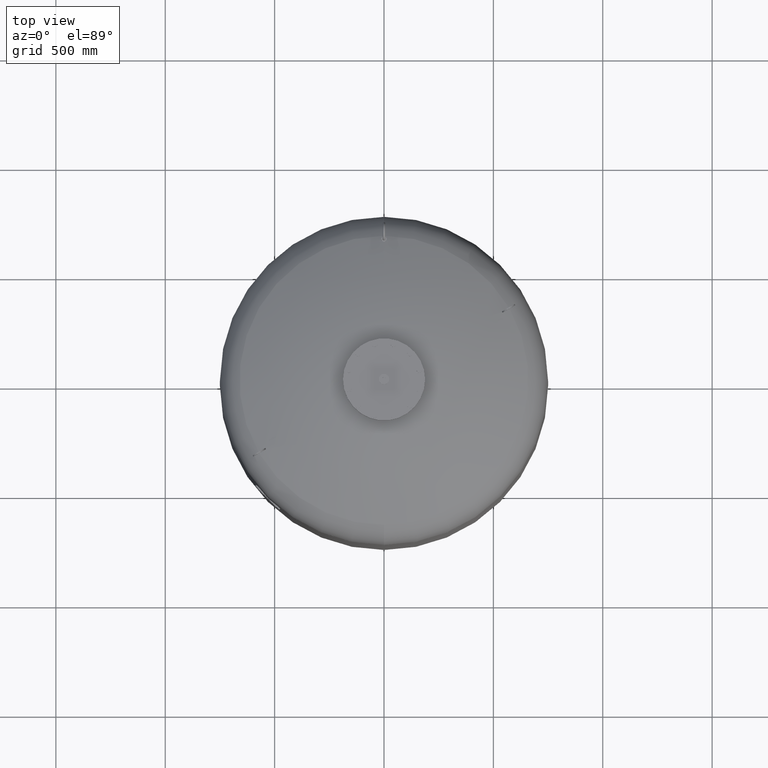
[diagram: clean part render]
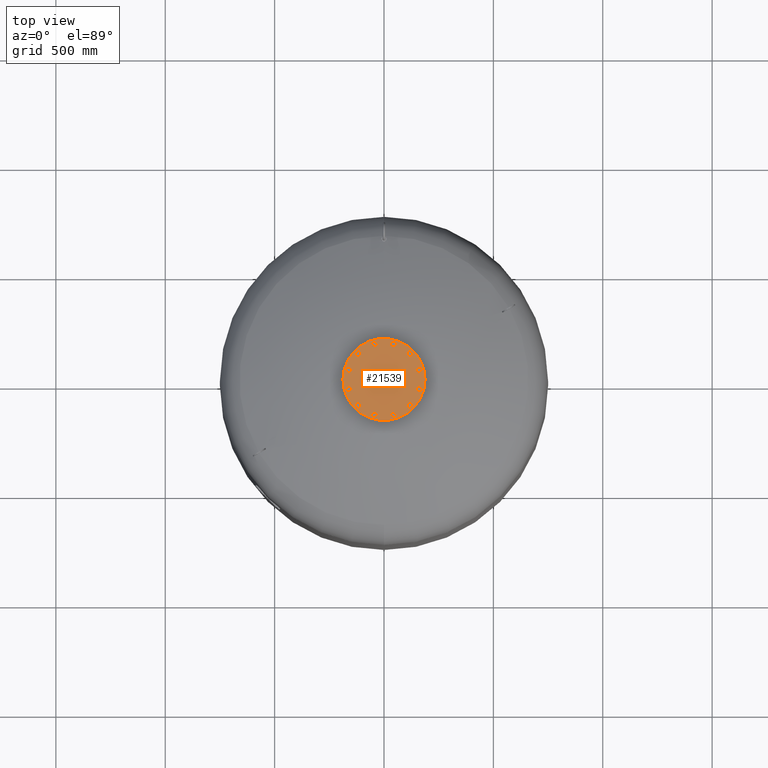
[diagram: same view with one face highlighted and labeled with its STEP entity id]
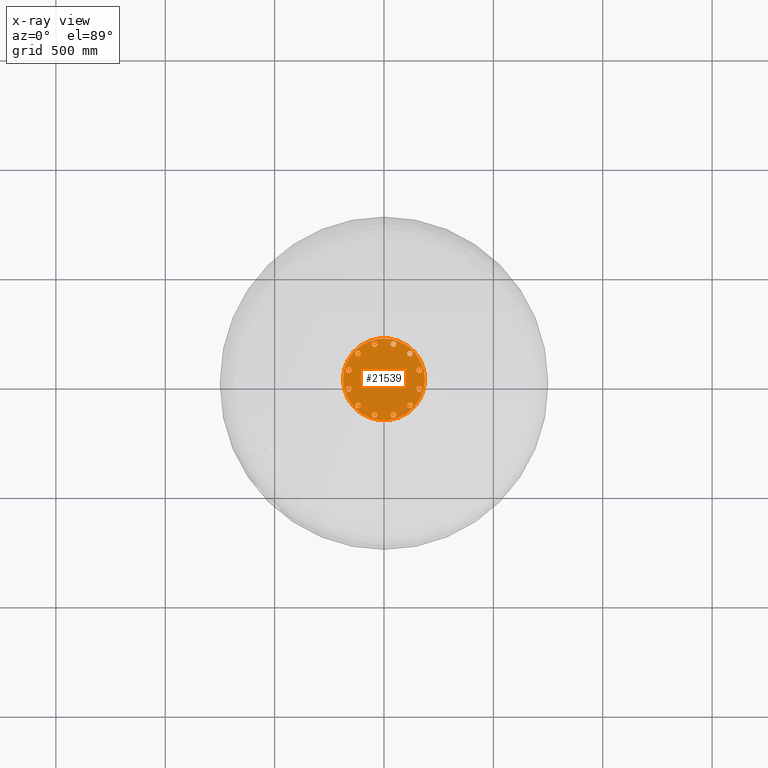
[diagram: x-ray of the same camera — body ghosted, the highlighted face saturated]
A machine part, top view. The second image highlights one B-rep face of the part: STEP entity #21539.
The next image is the same camera in x-ray: the body ghosted, the highlighted face saturated — about 0% of this face is hidden behind the body in this view.
In plain terms, the highlighted planar face has unit normal (0, 0, 1).
Its self-contained STEP definition (entity closure, byte-faithful):
#13777=CARTESIAN_POINT('',(-187.500000000000000,0.0,2481.0));
#13778=VERTEX_POINT('',#13777);
#13794=CARTESIAN_POINT('',(187.500000000000000,-2.296137E-014,2481.0));
#13795=VERTEX_POINT('',#13794);
#13802=CARTESIAN_POINT('',(0.0,0.0,2481.0));
#13803=DIRECTION('',(0.0,0.0,-1.0));
#13804=DIRECTION('',(-1.0,0.0,0.0));
#13805=AXIS2_PLACEMENT_3D('',#13802,#13803,#13804);
#13806=CIRCLE('',#13805,187.500000000000000);
#13807=EDGE_CURVE('',#13795,#13778,#13806,.T.);
#19033=CARTESIAN_POINT('',(157.729139400922860,30.104983413641008,2481.0));
#19034=VERTEX_POINT('',#19033);
#19035=CARTESIAN_POINT('',(148.288440171855850,40.247625971983268,2481.0));
#19036=VERTEX_POINT('',#19035);
#19037=CARTESIAN_POINT('',(157.729139400922860,30.104983413641008,2481.0));
#19038=DIRECTION('',(-0.681323780155013,0.731982176419128,0.0));
#19039=VECTOR('',#19038,13.856406460551090);
#19040=LINE('',#19037,#19039);
#19041=EDGE_CURVE('',#19034,#19036,#19040,.T.);
#19073=CARTESIAN_POINT('',(171.233275132485970,33.209547496330110,2481.0));
#19074=VERTEX_POINT('',#19073);
#19075=CARTESIAN_POINT('',(171.233275132485970,33.209547496330110,2481.0));
#19076=DIRECTION('',(-0.974577049973894,-0.224052613607123,0.0));
#19077=VECTOR('',#19076,13.856406460551119);
#19078=LINE('',#19075,#19077);
#19079=EDGE_CURVE('',#19074,#19034,#19078,.T.);
#19104=CARTESIAN_POINT('',(175.296711634982050,46.456754137361422,2481.0));
#19105=VERTEX_POINT('',#19104);
#19106=CARTESIAN_POINT('',(175.296711634982050,46.456754137361422,2481.0));
#19107=DIRECTION('',(-0.293253269818881,-0.956034790026249,0.0));
#19108=VECTOR('',#19107,13.856406460551076);
#19109=LINE('',#19106,#19108);
#19110=EDGE_CURVE('',#19105,#19074,#19109,.T.);
#19135=CARTESIAN_POINT('',(152.351876674351930,53.494832613014587,2481.0));
#19136=VERTEX_POINT('',#19135);
#19137=CARTESIAN_POINT('',(148.288440171855850,40.247625971983268,2481.0));
#19138=DIRECTION('',(0.293253269818881,0.956034790026249,0.0));
#19139=VECTOR('',#19138,13.856406460551083);
#19140=LINE('',#19137,#19139);
#19141=EDGE_CURVE('',#19036,#19136,#19140,.T.);
#19166=CARTESIAN_POINT('',(165.856012405915040,56.599396695703689,2481.0));
#19167=VERTEX_POINT('',#19166);
#19168=CARTESIAN_POINT('',(152.351876674351930,53.494832613014587,2481.0));
#19169=DIRECTION('',(0.974577049973894,0.224052613607123,0.0));
#19170=VECTOR('',#19169,13.856406460551119);
#19171=LINE('',#19168,#19170);
#19172=EDGE_CURVE('',#19136,#19167,#19171,.T.);
#19197=CARTESIAN_POINT('',(165.856012405915040,56.599396695703689,2481.0));
#19198=DIRECTION('',(0.681323780155012,-0.731982176419129,0.0));
#19199=VECTOR('',#19198,13.856406460551096);
#19200=LINE('',#19197,#19199);
#19201=EDGE_CURVE('',#19167,#19105,#19200,.T.);
#19233=CARTESIAN_POINT('',(121.544949931435720,104.936250117183760,2481.0));
#19234=VERTEX_POINT('',#19233);
#19235=CARTESIAN_POINT('',(108.297743290404380,108.999686619679820,2481.0));
#19236=VERTEX_POINT('',#19235);
#19237=CARTESIAN_POINT('',(121.544949931435720,104.936250117183760,2481.0));
#19238=DIRECTION('',(-0.956034790026250,0.293253269818880,0.0));
#19239=VECTOR('',#19238,13.856406460551101);
#19240=LINE('',#19237,#19239);
#19241=EDGE_CURVE('',#19234,#19236,#19240,.T.);
#19273=CARTESIAN_POINT('',(131.687592489777960,114.376949346250780,2481.0));
#19274=VERTEX_POINT('',#19273);
#19275=CARTESIAN_POINT('',(131.687592489777960,114.376949346250780,2481.0));
#19276=DIRECTION('',(-0.731982176419127,-0.681323780155014,0.0));
#19277=VECTOR('',#19276,13.856406460551080);
#19278=LINE('',#19275,#19277);
#19279=EDGE_CURVE('',#19274,#19234,#19278,.T.);
#19304=CARTESIAN_POINT('',(128.583028407088880,127.881085077813880,2481.0));
#19305=VERTEX_POINT('',#19304);
#19306=CARTESIAN_POINT('',(128.583028407088880,127.881085077813880,2481.0));
#19307=DIRECTION('',(0.224052613607122,-0.974577049973894,0.0));
#19308=VECTOR('',#19307,13.856406460551099);
#19309=LINE('',#19306,#19308);
#19310=EDGE_CURVE('',#19305,#19274,#19309,.T.);
#19335=CARTESIAN_POINT('',(105.193179207715300,122.503822351242900,2481.0));
#19336=VERTEX_POINT('',#19335);
#19337=CARTESIAN_POINT('',(108.297743290404380,108.999686619679820,2481.0));
#19338=DIRECTION('',(-0.224052613607122,0.974577049973894,0.0));
#19339=VECTOR('',#19338,13.856406460551087);
#19340=LINE('',#19337,#19339);
#19341=EDGE_CURVE('',#19236,#19336,#19340,.T.);
#19366=CARTESIAN_POINT('',(115.335821766057560,131.944521580309950,2481.0));
#19367=VERTEX_POINT('',#19366);
#19368=CARTESIAN_POINT('',(105.193179207715300,122.503822351242900,2481.0));
#19369=DIRECTION('',(0.731982176419127,0.681323780155014,0.0));
#19370=VECTOR('',#19369,13.856406460551121);
#19371=LINE('',#19368,#19370);
#19372=EDGE_CURVE('',#19336,#19367,#19371,.T.);
#19397=CARTESIAN_POINT('',(115.335821766057560,131.944521580309950,2481.0));
#19398=DIRECTION('',(0.956034790026249,-0.293253269818881,0.0));
#19399=VECTOR('',#19398,13.856406460551076);
#19400=LINE('',#19397,#19399);
#19401=EDGE_CURVE('',#19367,#19305,#19400,.T.);
#19433=CARTESIAN_POINT('',(52.792889283739193,151.649933345076730,2481.0));
#19434=VERTEX_POINT('',#19433);
#19435=CARTESIAN_POINT('',(39.288753552176118,148.545369262387680,2481.0));
#19436=VERTEX_POINT('',#19435);
#19437=CARTESIAN_POINT('',(52.792889283739193,151.649933345076730,2481.0));
#19438=DIRECTION('',(-0.974577049973894,-0.224052613607120,0.0));
#19439=VECTOR('',#19438,13.856406460551073);
#19440=LINE('',#19437,#19439);
#19441=EDGE_CURVE('',#19434,#19436,#19440,.T.);
#19473=CARTESIAN_POINT('',(56.856325786235274,164.897139986108100,2481.0));
#19474=VERTEX_POINT('',#19473);
#19475=CARTESIAN_POINT('',(56.856325786235274,164.897139986108100,2481.0));
#19476=DIRECTION('',(-0.293253269818881,-0.956034790026249,0.0));
#19477=VECTOR('',#19476,13.856406460551133);
#19478=LINE('',#19475,#19477);
#19479=EDGE_CURVE('',#19474,#19434,#19478,.T.);
#19504=CARTESIAN_POINT('',(47.415626557168267,175.039782544450330,2481.0));
#19505=VERTEX_POINT('',#19504);
#19506=CARTESIAN_POINT('',(47.415626557168267,175.039782544450330,2481.0));
#19507=DIRECTION('',(0.681323780155014,-0.731982176419128,0.0));
#19508=VECTOR('',#19507,13.856406460551069);
#19509=LINE('',#19506,#19508);
#19510=EDGE_CURVE('',#19505,#19474,#19509,.T.);
#19535=CARTESIAN_POINT('',(29.848054323109103,158.688011820729910,2481.0));
#19536=VERTEX_POINT('',#19535);
#19537=CARTESIAN_POINT('',(39.288753552176118,148.545369262387680,2481.0));
#19538=DIRECTION('',(-0.681323780155014,0.731982176419127,0.0));
#19539=VECTOR('',#19538,13.856406460551076);
#19540=LINE('',#19537,#19539);
#19541=EDGE_CURVE('',#19436,#19536,#19540,.T.);
#19566=CARTESIAN_POINT('',(33.911490825605156,171.935218461761250,2481.0));
#19567=VERTEX_POINT('',#19566);
#19568=CARTESIAN_POINT('',(29.848054323109103,158.688011820729910,2481.0));
#19569=DIRECTION('',(0.293253269818879,0.956034790026250,0.0));
#19570=VECTOR('',#19569,13.856406460551097);
#19571=LINE('',#19568,#19570);
#19572=EDGE_CURVE('',#19536,#19567,#19571,.T.);
#19597=CARTESIAN_POINT('',(33.911490825605156,171.935218461761250,2481.0));
#19598=DIRECTION('',(0.974577049973894,0.224052613607121,0.0));
#19599=VECTOR('',#19598,13.856406460551113);
#19600=LINE('',#19597,#19599);
#19601=EDGE_CURVE('',#19567,#19505,#19600,.T.);
#19633=CARTESIAN_POINT('',(-30.104983413641008,157.729139400922860,2481.0));
#19634=VERTEX_POINT('',#19633);
#19635=CARTESIAN_POINT('',(-40.247625971983268,148.288440171855850,2481.0));
#19636=VERTEX_POINT('',#19635);
#19637=CARTESIAN_POINT('',(-30.104983413641008,157.729139400922860,2481.0));
#19638=DIRECTION('',(-0.731982176419128,-0.681323780155013,0.0));
#19639=VECTOR('',#19638,13.856406460551090);
#19640=LINE('',#19637,#19639);
#19641=EDGE_CURVE('',#19634,#19636,#19640,.T.);
#19673=CARTESIAN_POINT('',(-33.209547496330110,171.233275132485970,2481.0));
#19674=VERTEX_POINT('',#19673);
#19675=CARTESIAN_POINT('',(-33.209547496330110,171.233275132485970,2481.0));
#19676=DIRECTION('',(0.224052613607123,-0.974577049973894,0.0));
#19677=VECTOR('',#19676,13.856406460551119);
#19678=LINE('',#19675,#19677);
#19679=EDGE_CURVE('',#19674,#19634,#19678,.T.);
#19704=CARTESIAN_POINT('',(-46.456754137361422,175.296711634982050,2481.0));
#19705=VERTEX_POINT('',#19704);
#19706=CARTESIAN_POINT('',(-46.456754137361422,175.296711634982050,2481.0));
#19707=DIRECTION('',(0.956034790026249,-0.293253269818881,0.0));
#19708=VECTOR('',#19707,13.856406460551076);
#19709=LINE('',#19706,#19708);
#19710=EDGE_CURVE('',#19705,#19674,#19709,.T.);
#19735=CARTESIAN_POINT('',(-53.494832613014587,152.351876674351930,2481.0));
#19736=VERTEX_POINT('',#19735);
#19737=CARTESIAN_POINT('',(-40.247625971983268,148.288440171855850,2481.0));
#19738=DIRECTION('',(-0.956034790026249,0.293253269818881,0.0));
#19739=VECTOR('',#19738,13.856406460551083);
#19740=LINE('',#19737,#19739);
#19741=EDGE_CURVE('',#19636,#19736,#19740,.T.);
#19766=CARTESIAN_POINT('',(-56.599396695703689,165.856012405915040,2481.0));
#19767=VERTEX_POINT('',#19766);
#19768=CARTESIAN_POINT('',(-53.494832613014587,152.351876674351930,2481.0));
#19769=DIRECTION('',(-0.224052613607123,0.974577049973894,0.0));
#19770=VECTOR('',#19769,13.856406460551119);
#19771=LINE('',#19768,#19770);
#19772=EDGE_CURVE('',#19736,#19767,#19771,.T.);
#19797=CARTESIAN_POINT('',(-56.599396695703689,165.856012405915040,2481.0));
#19798=DIRECTION('',(0.731982176419129,0.681323780155012,0.0));
#19799=VECTOR('',#19798,13.856406460551096);
#19800=LINE('',#19797,#19799);
#19801=EDGE_CURVE('',#19767,#19705,#19800,.T.);
#19833=CARTESIAN_POINT('',(-104.936250117183700,121.544949931435750,2481.0));
#19834=VERTEX_POINT('',#19833);
#19835=CARTESIAN_POINT('',(-108.999686619679760,108.297743290404440,2481.0));
#19836=VERTEX_POINT('',#19835);
#19837=CARTESIAN_POINT('',(-104.936250117183700,121.544949931435750,2481.0));
#19838=DIRECTION('',(-0.293253269818880,-0.956034790026249,0.0));
#19839=VECTOR('',#19838,13.856406460551073);
#19840=LINE('',#19837,#19839);
#19841=EDGE_CURVE('',#19834,#19836,#19840,.T.);
#19873=CARTESIAN_POINT('',(-114.376949346250730,131.687592489778010,2481.0));
#19874=VERTEX_POINT('',#19873);
#19875=CARTESIAN_POINT('',(-114.376949346250730,131.687592489778010,2481.0));
#19876=DIRECTION('',(0.681323780155013,-0.731982176419128,0.0));
#19877=VECTOR('',#19876,13.856406460551101);
#19878=LINE('',#19875,#19877);
#19879=EDGE_CURVE('',#19874,#19834,#19878,.T.);
#19904=CARTESIAN_POINT('',(-127.881085077813810,128.583028407088930,2481.0));
#19905=VERTEX_POINT('',#19904);
#19906=CARTESIAN_POINT('',(-127.881085077813810,128.583028407088930,2481.0));
#19907=DIRECTION('',(0.974577049973894,0.224052613607122,0.0));
#19908=VECTOR('',#19907,13.856406460551087);
#19909=LINE('',#19906,#19908);
#19910=EDGE_CURVE('',#19905,#19874,#19909,.T.);
#19935=CARTESIAN_POINT('',(-122.503822351242850,105.193179207715360,2481.0));
#19936=VERTEX_POINT('',#19935);
#19937=CARTESIAN_POINT('',(-108.999686619679760,108.297743290404440,2481.0));
#19938=DIRECTION('',(-0.974577049973894,-0.224052613607122,0.0));
#19939=VECTOR('',#19938,13.856406460551087);
#19940=LINE('',#19937,#19939);
#19941=EDGE_CURVE('',#19836,#19936,#19940,.T.);
#19966=CARTESIAN_POINT('',(-131.944521580309900,115.335821766057620,2481.0));
#19967=VERTEX_POINT('',#19966);
#19968=CARTESIAN_POINT('',(-122.503822351242850,105.193179207715360,2481.0));
#19969=DIRECTION('',(-0.681323780155014,0.731982176419127,0.0));
#19970=VECTOR('',#19969,13.856406460551121);
#19971=LINE('',#19968,#19970);
#19972=EDGE_CURVE('',#19936,#19967,#19971,.T.);
#19997=CARTESIAN_POINT('',(-131.944521580309900,115.335821766057620,2481.0));
#19998=DIRECTION('',(0.293253269818882,0.956034790026249,0.0));
#19999=VECTOR('',#19998,13.856406460551081);
#20000=LINE('',#19997,#19999);
#20001=EDGE_CURVE('',#19967,#19905,#20000,.T.);
#20033=CARTESIAN_POINT('',(-151.649933345076730,52.792889283739214,2481.0));
#20034=VERTEX_POINT('',#20033);
#20035=CARTESIAN_POINT('',(-148.545369262387650,39.288753552176125,2481.0));
#20036=VERTEX_POINT('',#20035);
#20037=CARTESIAN_POINT('',(-151.649933345076730,52.792889283739214,2481.0));
#20038=DIRECTION('',(0.224052613607122,-0.974577049973894,0.0));
#20039=VECTOR('',#20038,13.856406460551092);
#20040=LINE('',#20037,#20039);
#20041=EDGE_CURVE('',#20034,#20036,#20040,.T.);
#20073=CARTESIAN_POINT('',(-164.897139986108100,56.856325786235296,2481.0));
#20074=VERTEX_POINT('',#20073);
#20075=CARTESIAN_POINT('',(-164.897139986108100,56.856325786235296,2481.0));
#20076=DIRECTION('',(0.956034790026249,-0.293253269818881,0.0));
#20077=VECTOR('',#20076,13.856406460551133);
#20078=LINE('',#20075,#20077);
#20079=EDGE_CURVE('',#20074,#20034,#20078,.T.);
#20104=CARTESIAN_POINT('',(-175.039782544450300,47.415626557168260,2481.0));
#20105=VERTEX_POINT('',#20104);
#20106=CARTESIAN_POINT('',(-175.039782544450300,47.415626557168260,2481.0));
#20107=DIRECTION('',(0.731982176419126,0.681323780155016,0.0));
#20108=VECTOR('',#20107,13.856406460551069);
#20109=LINE('',#20106,#20108);
#20110=EDGE_CURVE('',#20105,#20074,#20109,.T.);
#20135=CARTESIAN_POINT('',(-158.688011820729910,29.848054323109110,2481.0));
#20136=VERTEX_POINT('',#20135);
#20137=CARTESIAN_POINT('',(-148.545369262387650,39.288753552176125,2481.0));
#20138=DIRECTION('',(-0.731982176419128,-0.681323780155013,0.0));
#20139=VECTOR('',#20138,13.856406460551096);
#20140=LINE('',#20137,#20139);
#20141=EDGE_CURVE('',#20036,#20136,#20140,.T.);
#20166=CARTESIAN_POINT('',(-171.935218461761250,33.911490825605171,2481.0));
#20167=VERTEX_POINT('',#20166);
#20168=CARTESIAN_POINT('',(-158.688011820729910,29.848054323109110,2481.0));
#20169=DIRECTION('',(-0.956034790026250,0.293253269818880,0.0));
#20170=VECTOR('',#20169,13.856406460551101);
#20171=LINE('',#20168,#20170);
#20172=EDGE_CURVE('',#20136,#20167,#20171,.T.);
#20197=CARTESIAN_POINT('',(-171.935218461761250,33.911490825605171,2481.0));
#20198=DIRECTION('',(-0.224052613607120,0.974577049973894,0.0));
#20199=VECTOR('',#20198,13.856406460551087);
#20200=LINE('',#20197,#20199);
#20201=EDGE_CURVE('',#20167,#20105,#20200,.T.);
#20233=CARTESIAN_POINT('',(-157.729139400922860,-30.104983413640987,2481.0));
#20234=VERTEX_POINT('',#20233);
#20235=CARTESIAN_POINT('',(-148.288440171855850,-40.247625971983247,2481.0));
#20236=VERTEX_POINT('',#20235);
#20237=CARTESIAN_POINT('',(-157.729139400922860,-30.104983413640987,2481.0));
#20238=DIRECTION('',(0.681323780155013,-0.731982176419128,0.0));
#20239=VECTOR('',#20238,13.856406460551090);
#20240=LINE('',#20237,#20239);
#20241=EDGE_CURVE('',#20234,#20236,#20240,.T.);
#20273=CARTESIAN_POINT('',(-171.233275132486000,-33.209547496330096,2481.0));
#20274=VERTEX_POINT('',#20273);
#20275=CARTESIAN_POINT('',(-171.233275132486000,-33.209547496330096,2481.0));
#20276=DIRECTION('',(0.974577049973894,0.224052613607123,0.0));
#20277=VECTOR('',#20276,13.856406460551147);
#20278=LINE('',#20275,#20277);
#20279=EDGE_CURVE('',#20274,#20234,#20278,.T.);
#20304=CARTESIAN_POINT('',(-175.296711634982050,-46.456754137361401,2481.0));
#20305=VERTEX_POINT('',#20304);
#20306=CARTESIAN_POINT('',(-175.296711634982050,-46.456754137361401,2481.0));
#20307=DIRECTION('',(0.293253269818880,0.956034790026250,0.0));
#20308=VECTOR('',#20307,13.856406460551062);
#20309=LINE('',#20306,#20308);
#20310=EDGE_CURVE('',#20305,#20274,#20309,.T.);
#20335=CARTESIAN_POINT('',(-152.351876674351960,-53.494832613014580,2481.0));
#20336=VERTEX_POINT('',#20335);
#20337=CARTESIAN_POINT('',(-148.288440171855850,-40.247625971983247,2481.0));
#20338=DIRECTION('',(-0.293253269818883,-0.956034790026249,0.0));
#20339=VECTOR('',#20338,13.856406460551106);
#20340=LINE('',#20337,#20339);
#20341=EDGE_CURVE('',#20236,#20336,#20340,.T.);
#20366=CARTESIAN_POINT('',(-165.856012405915070,-56.599396695703646,2481.0));
#20367=VERTEX_POINT('',#20366);
#20368=CARTESIAN_POINT('',(-152.351876674351960,-53.494832613014580,2481.0));
#20369=DIRECTION('',(-0.974577049973894,-0.224052613607121,0.0));
#20370=VECTOR('',#20369,13.856406460551110);
#20371=LINE('',#20368,#20370);
#20372=EDGE_CURVE('',#20336,#20367,#20371,.T.);
#20397=CARTESIAN_POINT('',(-165.856012405915070,-56.599396695703646,2481.0));
#20398=DIRECTION('',(-0.681323780155012,0.731982176419129,0.0));
#20399=VECTOR('',#20398,13.856406460551062);
#20400=LINE('',#20397,#20399);
#20401=EDGE_CURVE('',#20367,#20305,#20400,.T.);
#20433=CARTESIAN_POINT('',(-121.544949931435750,-104.936250117183680,2481.0));
#20434=VERTEX_POINT('',#20433);
#20435=CARTESIAN_POINT('',(-108.297743290404440,-108.999686619679760,2481.0));
#20436=VERTEX_POINT('',#20435);
#20437=CARTESIAN_POINT('',(-121.544949931435750,-104.936250117183680,2481.0));
#20438=DIRECTION('',(0.956034790026249,-0.293253269818882,0.0));
#20439=VECTOR('',#20438,13.856406460551081);
#20440=LINE('',#20437,#20439);
#20441=EDGE_CURVE('',#20434,#20436,#20440,.T.);
#20473=CARTESIAN_POINT('',(-131.687592489778010,-114.376949346250730,2481.0));
#20474=VERTEX_POINT('',#20473);
#20475=CARTESIAN_POINT('',(-131.687592489778010,-114.376949346250730,2481.0));
#20476=DIRECTION('',(0.731982176419127,0.681323780155014,0.0));
#20477=VECTOR('',#20476,13.856406460551121);
#20478=LINE('',#20475,#20477);
#20479=EDGE_CURVE('',#20474,#20434,#20478,.T.);
#20504=CARTESIAN_POINT('',(-128.583028407088930,-127.881085077813790,2481.0));
#20505=VERTEX_POINT('',#20504);
#20506=CARTESIAN_POINT('',(-128.583028407088930,-127.881085077813790,2481.0));
#20507=DIRECTION('',(-0.224052613607122,0.974577049973894,0.0));
#20508=VECTOR('',#20507,13.856406460551071);
#20509=LINE('',#20506,#20508);
#20510=EDGE_CURVE('',#20505,#20474,#20509,.T.);
#20535=CARTESIAN_POINT('',(-105.193179207715360,-122.503822351242850,2481.0));
#20536=VERTEX_POINT('',#20535);
#20537=CARTESIAN_POINT('',(-108.297743290404440,-108.999686619679760,2481.0));
#20538=DIRECTION('',(0.224052613607122,-0.974577049973894,0.0));
#20539=VECTOR('',#20538,13.856406460551087);
#20540=LINE('',#20537,#20539);
#20541=EDGE_CURVE('',#20436,#20536,#20540,.T.);
#20566=CARTESIAN_POINT('',(-115.335821766057620,-131.944521580309900,2481.0));
#20567=VERTEX_POINT('',#20566);
#20568=CARTESIAN_POINT('',(-105.193179207715360,-122.503822351242850,2481.0));
#20569=DIRECTION('',(-0.731982176419127,-0.681323780155014,0.0));
#20570=VECTOR('',#20569,13.856406460551121);
#20571=LINE('',#20568,#20570);
#20572=EDGE_CURVE('',#20536,#20567,#20571,.T.);
#20597=CARTESIAN_POINT('',(-115.335821766057620,-131.944521580309900,2481.0));
#20598=DIRECTION('',(-0.956034790026249,0.293253269818883,0.0));
#20599=VECTOR('',#20598,13.856406460551085);
#20600=LINE('',#20597,#20599);
#20601=EDGE_CURVE('',#20567,#20505,#20600,.T.);
#20633=CARTESIAN_POINT('',(-52.792889283739228,-151.649933345076730,2481.0));
#20634=VERTEX_POINT('',#20633);
#20635=CARTESIAN_POINT('',(-39.288753552176132,-148.545369262387680,2481.0));
#20636=VERTEX_POINT('',#20635);
#20637=CARTESIAN_POINT('',(-52.792889283739228,-151.649933345076730,2481.0));
#20638=DIRECTION('',(0.974577049973894,0.224052613607120,0.0));
#20639=VECTOR('',#20638,13.856406460551094);
#20640=LINE('',#20637,#20639);
#20641=EDGE_CURVE('',#20634,#20636,#20640,.T.);
#20673=CARTESIAN_POINT('',(-56.856325786235296,-164.897139986108100,2481.0));
#20674=VERTEX_POINT('',#20673);
#20675=CARTESIAN_POINT('',(-56.856325786235296,-164.897139986108100,2481.0));
#20676=DIRECTION('',(0.293253269818880,0.956034790026250,0.0));
#20677=VECTOR('',#20676,13.856406460551129);
#20678=LINE('',#20675,#20677);
#20679=EDGE_CURVE('',#20674,#20634,#20678,.T.);
#20704=CARTESIAN_POINT('',(-47.415626557168281,-175.039782544450300,2481.0));
#20705=VERTEX_POINT('',#20704);
#20706=CARTESIAN_POINT('',(-47.415626557168281,-175.039782544450300,2481.0));
#20707=DIRECTION('',(-0.681323780155015,0.731982176419126,0.0));
#20708=VECTOR('',#20707,13.856406460551055);
#20709=LINE('',#20706,#20708);
#20710=EDGE_CURVE('',#20705,#20674,#20709,.T.);
#20735=CARTESIAN_POINT('',(-29.848054323109121,-158.688011820729910,2481.0));
#20736=VERTEX_POINT('',#20735);
#20737=CARTESIAN_POINT('',(-39.288753552176132,-148.545369262387680,2481.0));
#20738=DIRECTION('',(0.681323780155014,-0.731982176419127,0.0));
#20739=VECTOR('',#20738,13.856406460551073);
#20740=LINE('',#20737,#20739);
#20741=EDGE_CURVE('',#20636,#20736,#20740,.T.);
#20766=CARTESIAN_POINT('',(-33.911490825605199,-171.935218461761280,2481.0));
#20767=VERTEX_POINT('',#20766);
#20768=CARTESIAN_POINT('',(-29.848054323109121,-158.688011820729910,2481.0));
#20769=DIRECTION('',(-0.293253269818880,-0.956034790026249,0.0));
#20770=VECTOR('',#20769,13.856406460551133);
#20771=LINE('',#20768,#20770);
#20772=EDGE_CURVE('',#20736,#20767,#20771,.T.);
#20797=CARTESIAN_POINT('',(-33.911490825605199,-171.935218461761280,2481.0));
#20798=DIRECTION('',(-0.974577049973895,-0.224052613607118,0.0));
#20799=VECTOR('',#20798,13.856406460551074);
#20800=LINE('',#20797,#20799);
#20801=EDGE_CURVE('',#20767,#20705,#20800,.T.);
#20833=CARTESIAN_POINT('',(30.104983413640952,-157.729139400922890,2481.0));
#20834=VERTEX_POINT('',#20833);
#20835=CARTESIAN_POINT('',(40.247625971983211,-148.288440171855880,2481.0));
#20836=VERTEX_POINT('',#20835);
#20837=CARTESIAN_POINT('',(30.104983413640952,-157.729139400922890,2481.0));
#20838=DIRECTION('',(0.731982176419128,0.681323780155013,0.0));
#20839=VECTOR('',#20838,13.856406460551090);
#20840=LINE('',#20837,#20839);
#20841=EDGE_CURVE('',#20834,#20836,#20840,.T.);
#20873=CARTESIAN_POINT('',(33.209547496330039,-171.233275132486000,2481.0));
#20874=VERTEX_POINT('',#20873);
#20875=CARTESIAN_POINT('',(33.209547496330039,-171.233275132486000,2481.0));
#20876=DIRECTION('',(-0.224052613607122,0.974577049973894,0.0));
#20877=VECTOR('',#20876,13.856406460551115);
#20878=LINE('',#20875,#20877);
#20879=EDGE_CURVE('',#20874,#20834,#20878,.T.);
#20904=CARTESIAN_POINT('',(46.456754137361351,-175.296711634982070,2481.0));
#20905=VERTEX_POINT('',#20904);
#20906=CARTESIAN_POINT('',(46.456754137361351,-175.296711634982070,2481.0));
#20907=DIRECTION('',(-0.956034790026249,0.293253269818881,0.0));
#20908=VECTOR('',#20907,13.856406460551076);
#20909=LINE('',#20906,#20908);
#20910=EDGE_CURVE('',#20905,#20874,#20909,.T.);
#20935=CARTESIAN_POINT('',(53.494832613014523,-152.351876674351960,2481.0));
#20936=VERTEX_POINT('',#20935);
#20937=CARTESIAN_POINT('',(40.247625971983211,-148.288440171855880,2481.0));
#20938=DIRECTION('',(0.956034790026249,-0.293253269818881,0.0));
#20939=VECTOR('',#20938,13.856406460551076);
#20940=LINE('',#20937,#20939);
#20941=EDGE_CURVE('',#20836,#20936,#20940,.T.);
#20966=CARTESIAN_POINT('',(56.599396695703625,-165.856012405915070,2481.0));
#20967=VERTEX_POINT('',#20966);
#20968=CARTESIAN_POINT('',(53.494832613014523,-152.351876674351960,2481.0));
#20969=DIRECTION('',(0.224052613607123,-0.974577049973894,0.0));
#20970=VECTOR('',#20969,13.856406460551119);
#20971=LINE('',#20968,#20970);
#20972=EDGE_CURVE('',#20936,#20967,#20971,.T.);
#20997=CARTESIAN_POINT('',(56.599396695703625,-165.856012405915070,2481.0));
#20998=DIRECTION('',(-0.731982176419129,-0.681323780155012,0.0));
#20999=VECTOR('',#20998,13.856406460551101);
#21000=LINE('',#20997,#20999);
#21001=EDGE_CURVE('',#20967,#20905,#21000,.T.);
#21033=CARTESIAN_POINT('',(104.936250117183660,-121.544949931435800,2481.0));
#21034=VERTEX_POINT('',#21033);
#21035=CARTESIAN_POINT('',(108.999686619679750,-108.297743290404470,2481.0));
#21036=VERTEX_POINT('',#21035);
#21037=CARTESIAN_POINT('',(104.936250117183660,-121.544949931435800,2481.0));
#21038=DIRECTION('',(0.293253269818882,0.956034790026249,0.0));
#21039=VECTOR('',#21038,13.856406460551094);
#21040=LINE('',#21037,#21039);
#21041=EDGE_CURVE('',#21034,#21036,#21040,.T.);
#21073=CARTESIAN_POINT('',(114.376949346250710,-131.687592489778040,2481.0));
#21074=VERTEX_POINT('',#21073);
#21075=CARTESIAN_POINT('',(114.376949346250710,-131.687592489778040,2481.0));
#21076=DIRECTION('',(-0.681323780155015,0.731982176419126,0.0));
#21077=VECTOR('',#21076,13.856406460551110);
#21078=LINE('',#21075,#21077);
#21079=EDGE_CURVE('',#21074,#21034,#21078,.T.);
#21104=CARTESIAN_POINT('',(127.881085077813760,-128.583028407088960,2481.0));
#21105=VERTEX_POINT('',#21104);
#21106=CARTESIAN_POINT('',(127.881085077813760,-128.583028407088960,2481.0));
#21107=DIRECTION('',(-0.974577049973894,-0.224052613607122,0.0));
#21108=VECTOR('',#21107,13.856406460551058);
#21109=LINE('',#21106,#21108);
#21110=EDGE_CURVE('',#21105,#21074,#21109,.T.);
#21135=CARTESIAN_POINT('',(122.503822351242830,-105.193179207715390,2481.0));
#21136=VERTEX_POINT('',#21135);
#21137=CARTESIAN_POINT('',(108.999686619679750,-108.297743290404470,2481.0));
#21138=DIRECTION('',(0.974577049973894,0.224052613607122,0.0));
#21139=VECTOR('',#21138,13.856406460551087);
#21140=LINE('',#21137,#21139);
#21141=EDGE_CURVE('',#21036,#21136,#21140,.T.);
#21166=CARTESIAN_POINT('',(131.944521580309870,-115.335821766057650,2481.0));
#21167=VERTEX_POINT('',#21166);
#21168=CARTESIAN_POINT('',(122.503822351242830,-105.193179207715390,2481.0));
#21169=DIRECTION('',(0.681323780155014,-0.731982176419127,0.0));
#21170=VECTOR('',#21169,13.856406460551110);
#21171=LINE('',#21168,#21170);
#21172=EDGE_CURVE('',#21136,#21167,#21171,.T.);
#21197=CARTESIAN_POINT('',(131.944521580309870,-115.335821766057650,2481.0));
#21198=DIRECTION('',(-0.293253269818883,-0.956034790026249,0.0));
#21199=VECTOR('',#21198,13.856406460551085);
#21200=LINE('',#21197,#21199);
#21201=EDGE_CURVE('',#21167,#21105,#21200,.T.);
#21233=CARTESIAN_POINT('',(151.649933345076730,-52.792889283739228,2481.0));
#21234=VERTEX_POINT('',#21233);
#21235=CARTESIAN_POINT('',(148.545369262387650,-39.288753552176139,2481.0));
#21236=VERTEX_POINT('',#21235);
#21237=CARTESIAN_POINT('',(151.649933345076730,-52.792889283739228,2481.0));
#21238=DIRECTION('',(-0.224052613607122,0.974577049973894,0.0));
#21239=VECTOR('',#21238,13.856406460551092);
#21240=LINE('',#21237,#21239);
#21241=EDGE_CURVE('',#21234,#21236,#21240,.T.);
#21273=CARTESIAN_POINT('',(164.897139986108070,-56.856325786235303,2481.0));
#21274=VERTEX_POINT('',#21273);
#21275=CARTESIAN_POINT('',(164.897139986108070,-56.856325786235303,2481.0));
#21276=DIRECTION('',(-0.956034790026249,0.293253269818881,0.0));
#21277=VECTOR('',#21276,13.856406460551105);
#21278=LINE('',#21275,#21277);
#21279=EDGE_CURVE('',#21274,#21234,#21278,.T.);
#21304=CARTESIAN_POINT('',(175.039782544450300,-47.415626557168295,2481.0));
#21305=VERTEX_POINT('',#21304);
#21306=CARTESIAN_POINT('',(175.039782544450300,-47.415626557168295,2481.0));
#21307=DIRECTION('',(-0.731982176419128,-0.681323780155014,0.0));
#21308=VECTOR('',#21307,13.856406460551069);
#21309=LINE('',#21306,#21308);
#21310=EDGE_CURVE('',#21305,#21274,#21309,.T.);
#21335=CARTESIAN_POINT('',(158.688011820729910,-29.848054323109132,2481.0));
#21336=VERTEX_POINT('',#21335);
#21337=CARTESIAN_POINT('',(148.545369262387650,-39.288753552176139,2481.0));
#21338=DIRECTION('',(0.731982176419128,0.681323780155013,0.0));
#21339=VECTOR('',#21338,13.856406460551090);
#21340=LINE('',#21337,#21339);
#21341=EDGE_CURVE('',#21236,#21336,#21340,.T.);
#21366=CARTESIAN_POINT('',(171.935218461761250,-33.911490825605206,2481.0));
#21367=VERTEX_POINT('',#21366);
#21368=CARTESIAN_POINT('',(158.688011820729910,-29.848054323109132,2481.0));
#21369=DIRECTION('',(0.956034790026249,-0.293253269818881,0.0));
#21370=VECTOR('',#21369,13.856406460551105);
#21371=LINE('',#21368,#21370);
#21372=EDGE_CURVE('',#21336,#21367,#21371,.T.);
#21397=CARTESIAN_POINT('',(171.935218461761250,-33.911490825605206,2481.0));
#21398=DIRECTION('',(0.224052613607120,-0.974577049973894,0.0));
#21399=VECTOR('',#21398,13.856406460551087);
#21400=LINE('',#21397,#21399);
#21401=EDGE_CURVE('',#21367,#21305,#21400,.T.);
#21428=CARTESIAN_POINT('',(-93.750000000000000,-7.888609E-031,2481.0));
#21429=DIRECTION('',(0.0,0.0,1.0));
#21430=DIRECTION('',(0.0,1.0,0.0));
#21431=AXIS2_PLACEMENT_3D('',#21428,#21429,#21430);
#21432=PLANE('',#21431);
#21433=CARTESIAN_POINT('',(0.0,0.0,2481.0));
#21434=DIRECTION('',(0.0,0.0,-1.0));
#21435=DIRECTION('',(-1.0,0.0,0.0));
#21436=AXIS2_PLACEMENT_3D('',#21433,#21434,#21435);
#21437=CIRCLE('',#21436,187.500000000000000);
#21438=EDGE_CURVE('',#13778,#13795,#21437,.T.);
#21439=ORIENTED_EDGE('',*,*,#21438,.F.);
#21440=ORIENTED_EDGE('',*,*,#13807,.F.);
#21441=EDGE_LOOP('',(#21439,#21440));
#21442=FACE_OUTER_BOUND('',#21441,.T.);
#21443=ORIENTED_EDGE('',*,*,#19041,.T.);
#21444=ORIENTED_EDGE('',*,*,#19141,.T.);
#21445=ORIENTED_EDGE('',*,*,#19172,.T.);
#21446=ORIENTED_EDGE('',*,*,#19201,.T.);
#21447=ORIENTED_EDGE('',*,*,#19110,.T.);
#21448=ORIENTED_EDGE('',*,*,#19079,.T.);
#21449=EDGE_LOOP('',(#21443,#21444,#21445,#21446,#21447,#21448));
#21450=FACE_BOUND('',#21449,.T.);
#21451=ORIENTED_EDGE('',*,*,#19241,.T.);
#21452=ORIENTED_EDGE('',*,*,#19341,.T.);
#21453=ORIENTED_EDGE('',*,*,#19372,.T.);
#21454=ORIENTED_EDGE('',*,*,#19401,.T.);
#21455=ORIENTED_EDGE('',*,*,#19310,.T.);
#21456=ORIENTED_EDGE('',*,*,#19279,.T.);
#21457=EDGE_LOOP('',(#21451,#21452,#21453,#21454,#21455,#21456));
#21458=FACE_BOUND('',#21457,.T.);
#21459=ORIENTED_EDGE('',*,*,#19441,.T.);
#21460=ORIENTED_EDGE('',*,*,#19541,.T.);
#21461=ORIENTED_EDGE('',*,*,#19572,.T.);
#21462=ORIENTED_EDGE('',*,*,#19601,.T.);
#21463=ORIENTED_EDGE('',*,*,#19510,.T.);
#21464=ORIENTED_EDGE('',*,*,#19479,.T.);
#21465=EDGE_LOOP('',(#21459,#21460,#21461,#21462,#21463,#21464));
#21466=FACE_BOUND('',#21465,.T.);
#21467=ORIENTED_EDGE('',*,*,#19641,.T.);
#21468=ORIENTED_EDGE('',*,*,#19741,.T.);
#21469=ORIENTED_EDGE('',*,*,#19772,.T.);
#21470=ORIENTED_EDGE('',*,*,#19801,.T.);
#21471=ORIENTED_EDGE('',*,*,#19710,.T.);
#21472=ORIENTED_EDGE('',*,*,#19679,.T.);
#21473=EDGE_LOOP('',(#21467,#21468,#21469,#21470,#21471,#21472));
#21474=FACE_BOUND('',#21473,.T.);
#21475=ORIENTED_EDGE('',*,*,#19841,.T.);
#21476=ORIENTED_EDGE('',*,*,#19941,.T.);
#21477=ORIENTED_EDGE('',*,*,#19972,.T.);
#21478=ORIENTED_EDGE('',*,*,#20001,.T.);
#21479=ORIENTED_EDGE('',*,*,#19910,.T.);
#21480=ORIENTED_EDGE('',*,*,#19879,.T.);
#21481=EDGE_LOOP('',(#21475,#21476,#21477,#21478,#21479,#21480));
#21482=FACE_BOUND('',#21481,.T.);
#21483=ORIENTED_EDGE('',*,*,#20041,.T.);
#21484=ORIENTED_EDGE('',*,*,#20141,.T.);
#21485=ORIENTED_EDGE('',*,*,#20172,.T.);
#21486=ORIENTED_EDGE('',*,*,#20201,.T.);
#21487=ORIENTED_EDGE('',*,*,#20110,.T.);
#21488=ORIENTED_EDGE('',*,*,#20079,.T.);
#21489=EDGE_LOOP('',(#21483,#21484,#21485,#21486,#21487,#21488));
#21490=FACE_BOUND('',#21489,.T.);
#21491=ORIENTED_EDGE('',*,*,#20241,.T.);
#21492=ORIENTED_EDGE('',*,*,#20341,.T.);
#21493=ORIENTED_EDGE('',*,*,#20372,.T.);
#21494=ORIENTED_EDGE('',*,*,#20401,.T.);
#21495=ORIENTED_EDGE('',*,*,#20310,.T.);
#21496=ORIENTED_EDGE('',*,*,#20279,.T.);
#21497=EDGE_LOOP('',(#21491,#21492,#21493,#21494,#21495,#21496));
#21498=FACE_BOUND('',#21497,.T.);
#21499=ORIENTED_EDGE('',*,*,#20441,.T.);
#21500=ORIENTED_EDGE('',*,*,#20541,.T.);
#21501=ORIENTED_EDGE('',*,*,#20572,.T.);
#21502=ORIENTED_EDGE('',*,*,#20601,.T.);
#21503=ORIENTED_EDGE('',*,*,#20510,.T.);
#21504=ORIENTED_EDGE('',*,*,#20479,.T.);
#21505=EDGE_LOOP('',(#21499,#21500,#21501,#21502,#21503,#21504));
#21506=FACE_BOUND('',#21505,.T.);
#21507=ORIENTED_EDGE('',*,*,#20641,.T.);
#21508=ORIENTED_EDGE('',*,*,#20741,.T.);
#21509=ORIENTED_EDGE('',*,*,#20772,.T.);
#21510=ORIENTED_EDGE('',*,*,#20801,.T.);
#21511=ORIENTED_EDGE('',*,*,#20710,.T.);
#21512=ORIENTED_EDGE('',*,*,#20679,.T.);
#21513=EDGE_LOOP('',(#21507,#21508,#21509,#21510,#21511,#21512));
#21514=FACE_BOUND('',#21513,.T.);
#21515=ORIENTED_EDGE('',*,*,#20841,.T.);
#21516=ORIENTED_EDGE('',*,*,#20941,.T.);
#21517=ORIENTED_EDGE('',*,*,#20972,.T.);
#21518=ORIENTED_EDGE('',*,*,#21001,.T.);
#21519=ORIENTED_EDGE('',*,*,#20910,.T.);
#21520=ORIENTED_EDGE('',*,*,#20879,.T.);
#21521=EDGE_LOOP('',(#21515,#21516,#21517,#21518,#21519,#21520));
#21522=FACE_BOUND('',#21521,.T.);
#21523=ORIENTED_EDGE('',*,*,#21041,.T.);
#21524=ORIENTED_EDGE('',*,*,#21141,.T.);
#21525=ORIENTED_EDGE('',*,*,#21172,.T.);
#21526=ORIENTED_EDGE('',*,*,#21201,.T.);
#21527=ORIENTED_EDGE('',*,*,#21110,.T.);
#21528=ORIENTED_EDGE('',*,*,#21079,.T.);
#21529=EDGE_LOOP('',(#21523,#21524,#21525,#21526,#21527,#21528));
#21530=FACE_BOUND('',#21529,.T.);
#21531=ORIENTED_EDGE('',*,*,#21241,.T.);
#21532=ORIENTED_EDGE('',*,*,#21341,.T.);
#21533=ORIENTED_EDGE('',*,*,#21372,.T.);
#21534=ORIENTED_EDGE('',*,*,#21401,.T.);
#21535=ORIENTED_EDGE('',*,*,#21310,.T.);
#21536=ORIENTED_EDGE('',*,*,#21279,.T.);
#21537=EDGE_LOOP('',(#21531,#21532,#21533,#21534,#21535,#21536));
#21538=FACE_BOUND('',#21537,.T.);
#21539=ADVANCED_FACE('',(#21442,#21450,#21458,#21466,#21474,#21482,#21490,#21498,#21506,#21514,#21522,#21530,#21538),#21432,.T.);